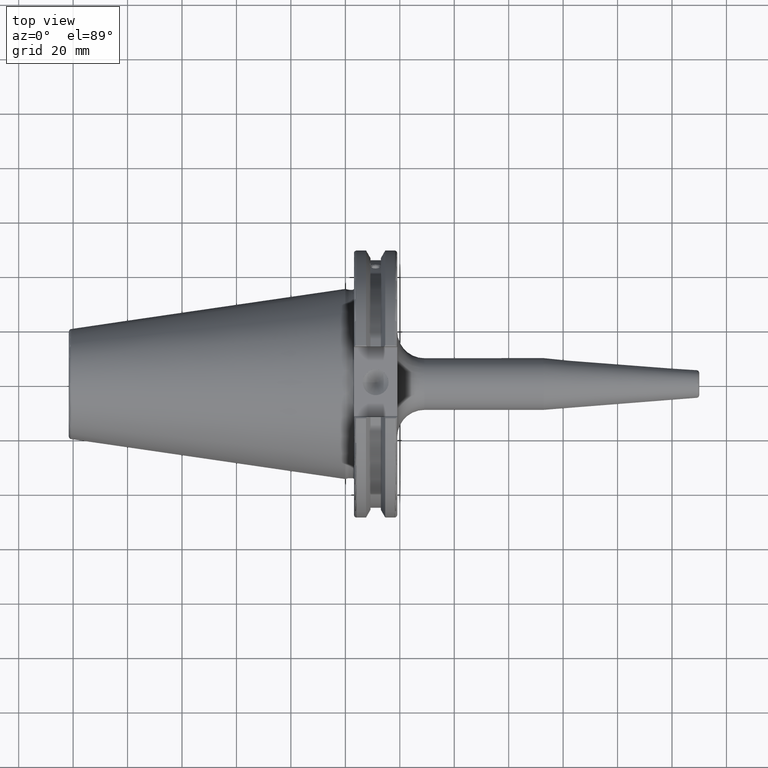
[diagram: clean part render]
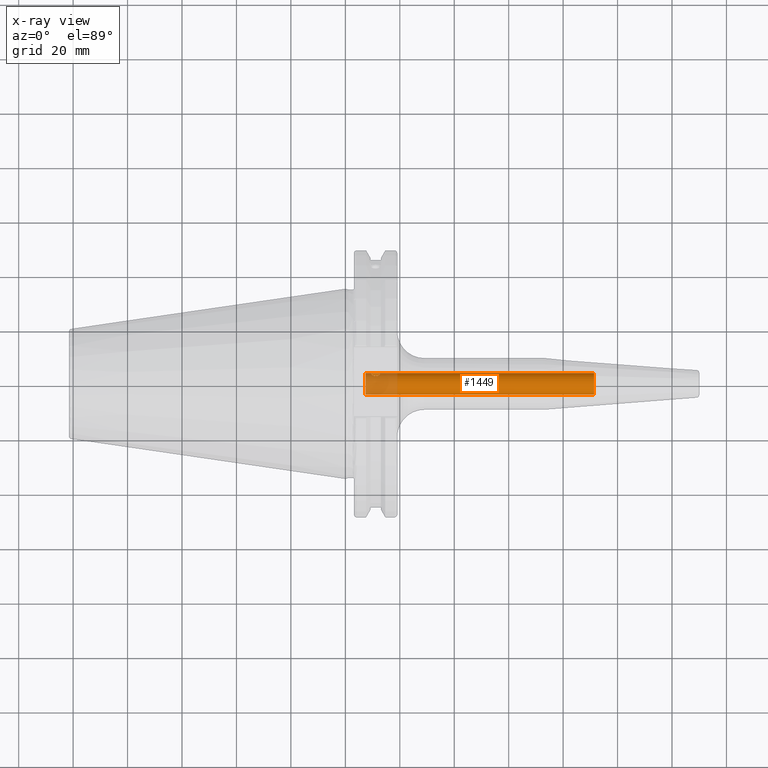
[diagram: x-ray — body ghosted, one internal face saturated and labeled with its STEP entity id]
A machine part, top view, then the same camera in x-ray: the body is ghosted and one INTERNAL B-rep face — a face not visible from any outside direction — is saturated and labeled: STEP entity #1449.
In plain terms, the highlighted cylindrical surface (bore or boss wall) has radius 4 mm, axis along (-1, 0, 0).
Its self-contained STEP definition (entity closure, byte-faithful):
#33=B_SPLINE_CURVE_WITH_KNOTS('',3,(#2195,#2196,#2197,#2198,#2199,#2200,
#2201,#2202,#2203,#2204,#2205,#2206,#2207,#2208,#2209,#2210,#2211,#2212,
#2213,#2214,#2215,#2216,#2217,#2218,#2219,#2220),.UNSPECIFIED.,.F.,.F.,
(4,2,2,2,2,2,2,2,2,2,2,2,4),(0.,0.0618742078368847,0.123748415673769,0.185556382934797,
0.247364350195824,0.309172317456851,0.370980284717878,0.432854492554763,
0.494728700391647,0.556602908228532,0.618477116065417,0.680285083326444,
0.742093050587471),.UNSPECIFIED.);
#34=B_SPLINE_CURVE_WITH_KNOTS('',3,(#2221,#2222,#2223,#2224,#2225,#2226,
#2227,#2228,#2229,#2230),.UNSPECIFIED.,.F.,.F.,(4,2,2,2,4),(0.742093050587471,
0.803901017848498,0.865708985109525,0.92758319294641,0.989457400783294),
 .UNSPECIFIED.);
#35=B_SPLINE_CURVE_WITH_KNOTS('',3,(#2233,#2234,#2235,#2236,#2237,#2238,
#2239,#2240,#2241,#2242,#2243,#2244,#2245,#2246,#2247,#2248,#2249,#2250,
#2251,#2252,#2253,#2254,#2255,#2256,#2257,#2258),.UNSPECIFIED.,.F.,.F.,
(4,2,2,2,2,2,2,2,2,2,2,2,4),(0.,0.0618742078368847,0.123748415673769,0.185556382934797,
0.247364350195824,0.309172317456851,0.370980284717879,0.432854492554763,
0.494728700391648,0.556602908228532,0.618477116065417,0.680285083326444,
0.742093050587471),.UNSPECIFIED.);
#36=B_SPLINE_CURVE_WITH_KNOTS('',3,(#2259,#2260,#2261,#2262,#2263,#2264,
#2265,#2266,#2267,#2268),.UNSPECIFIED.,.F.,.F.,(4,2,2,2,4),(0.742093050587471,
0.803901017848498,0.865708985109525,0.92758319294641,0.989457400783294),
 .UNSPECIFIED.);
#73=CYLINDRICAL_SURFACE('',#1574,4.);
#100=FACE_BOUND('',#451,.T.);
#101=FACE_BOUND('',#452,.T.);
#166=LINE('',#2192,#260);
#260=VECTOR('',#1779,4.);
#363=FACE_OUTER_BOUND('',#450,.T.);
#450=EDGE_LOOP('',(#1033,#1034,#1035,#1036));
#451=EDGE_LOOP('',(#1037,#1038));
#452=EDGE_LOOP('',(#1039,#1040));
#555=CIRCLE('',#1568,4.);
#557=CIRCLE('',#1572,4.);
#636=VERTEX_POINT('',#2178);
#638=VERTEX_POINT('',#2186);
#640=VERTEX_POINT('',#2193);
#641=VERTEX_POINT('',#2194);
#642=VERTEX_POINT('',#2231);
#643=VERTEX_POINT('',#2232);
#789=EDGE_CURVE('',#636,#636,#555,.T.);
#792=EDGE_CURVE('',#638,#638,#557,.T.);
#795=EDGE_CURVE('',#636,#638,#166,.T.);
#796=EDGE_CURVE('',#640,#641,#33,.T.);
#797=EDGE_CURVE('',#641,#640,#34,.T.);
#798=EDGE_CURVE('',#642,#643,#35,.T.);
#799=EDGE_CURVE('',#643,#642,#36,.T.);
#1033=ORIENTED_EDGE('',*,*,#789,.T.);
#1034=ORIENTED_EDGE('',*,*,#795,.T.);
#1035=ORIENTED_EDGE('',*,*,#792,.F.);
#1036=ORIENTED_EDGE('',*,*,#795,.F.);
#1037=ORIENTED_EDGE('',*,*,#796,.F.);
#1038=ORIENTED_EDGE('',*,*,#797,.F.);
#1039=ORIENTED_EDGE('',*,*,#798,.F.);
#1040=ORIENTED_EDGE('',*,*,#799,.F.);
#1449=ADVANCED_FACE('',(#363,#100,#101),#73,.F.);
#1568=AXIS2_PLACEMENT_3D('',#2180,#1763,#1764);
#1572=AXIS2_PLACEMENT_3D('',#2187,#1772,#1773);
#1574=AXIS2_PLACEMENT_3D('',#2191,#1777,#1778);
#1763=DIRECTION('center_axis',(-1.,0.,0.));
#1764=DIRECTION('ref_axis',(0.,0.,1.));
#1772=DIRECTION('center_axis',(-1.,0.,0.));
#1773=DIRECTION('ref_axis',(0.,0.,1.));
#1777=DIRECTION('center_axis',(-1.,0.,0.));
#1778=DIRECTION('ref_axis',(0.,0.,1.));
#1779=DIRECTION('',(1.,0.,0.));
#2178=CARTESIAN_POINT('',(7.45580917843603,-4.89858719658941E-16,-4.));
#2180=CARTESIAN_POINT('Origin',(7.45580917843603,0.,0.));
#2186=CARTESIAN_POINT('',(91.4,-4.89858719658942E-16,-4.00000000000001));
#2187=CARTESIAN_POINT('Origin',(91.4,0.,0.));
#2191=CARTESIAN_POINT('Origin',(-5.1,0.,0.));
#2192=CARTESIAN_POINT('',(-5.1,-4.89858719658941E-16,-4.));
#2193=CARTESIAN_POINT('',(11.1341,-3.99070482512933,0.272534399093866));
#2194=CARTESIAN_POINT('',(9.5131,-3.75877048314363,-1.36808057330268));
#2195=CARTESIAN_POINT('Ctrl Pts',(11.1341,-3.99070482512933,0.272534399093866));
#2196=CARTESIAN_POINT('Ctrl Pts',(11.3403473594563,-3.99070482512933,0.272534399093866));
#2197=CARTESIAN_POINT('Ctrl Pts',(11.5584520062584,-3.99457216119088,0.226743676053507));
#2198=CARTESIAN_POINT('Ctrl Pts',(11.9569734476557,-4.00071729112292,0.0477496275625743));
#2199=CARTESIAN_POINT('Ctrl Pts',(12.1376373648484,-4.00187016626142,-0.0849398902486523));
#2200=CARTESIAN_POINT('Ctrl Pts',(12.4228500681296,-3.98448362830594,-0.382128727215544));
#2201=CARTESIAN_POINT('Ctrl Pts',(12.5472588058457,-3.96471483330365,-0.567253235362105));
#2202=CARTESIAN_POINT('Ctrl Pts',(12.7134451981473,-3.88747363651699,-0.963477385751771));
#2203=CARTESIAN_POINT('Ctrl Pts',(12.7551,-3.82923571588125,-1.17447893749946));
#2204=CARTESIAN_POINT('Ctrl Pts',(12.7551,-3.68830525040602,-1.56168220910589));
#2205=CARTESIAN_POINT('Ctrl Pts',(12.7134451981473,-3.59728890279978,-1.76075338911026));
#2206=CARTESIAN_POINT('Ctrl Pts',(12.5472588058457,-3.40177111784901,-2.11392838199762));
#2207=CARTESIAN_POINT('Ctrl Pts',(12.4228500681296,-3.29791915332174,-2.26844911923433));
#2208=CARTESIAN_POINT('Ctrl Pts',(12.1376373648484,-3.12020871196815,-2.50728482752294));
#2209=CARTESIAN_POINT('Ctrl Pts',(11.9569734476557,-3.03403438039035,-2.60818984144782));
#2210=CARTESIAN_POINT('Ctrl Pts',(11.5584520062584,-2.91427178117607,-2.74135722426544));
#2211=CARTESIAN_POINT('Ctrl Pts',(11.3403473594563,-2.88187552046751,-2.77394907749405));
#2212=CARTESIAN_POINT('Ctrl Pts',(10.9278526405437,-2.88187552046751,-2.77394907749405));
#2213=CARTESIAN_POINT('Ctrl Pts',(10.7097479937416,-2.91427178117607,-2.74135722426544));
#2214=CARTESIAN_POINT('Ctrl Pts',(10.3112265523443,-3.03403438039035,-2.60818984144781));
#2215=CARTESIAN_POINT('Ctrl Pts',(10.1305626351516,-3.12020871196815,-2.50728482752294));
#2216=CARTESIAN_POINT('Ctrl Pts',(9.84534993187044,-3.29791915332174,-2.26844911923433));
#2217=CARTESIAN_POINT('Ctrl Pts',(9.72094119415433,-3.40177111784901,-2.11392838199762));
#2218=CARTESIAN_POINT('Ctrl Pts',(9.55475480185271,-3.59728890279979,-1.76075338911025));
#2219=CARTESIAN_POINT('Ctrl Pts',(9.5131,-3.68830525040602,-1.56168220910589));
#2220=CARTESIAN_POINT('Ctrl Pts',(9.5131,-3.75877048314363,-1.36808057330268));
#2221=CARTESIAN_POINT('Ctrl Pts',(9.5131,-3.75877048314363,-1.36808057330268));
#2222=CARTESIAN_POINT('Ctrl Pts',(9.5131,-3.82923571588125,-1.17447893749946));
#2223=CARTESIAN_POINT('Ctrl Pts',(9.55475480185271,-3.88747363651699,-0.963477385751773));
#2224=CARTESIAN_POINT('Ctrl Pts',(9.72094119415433,-3.96471483330365,-0.567253235362107));
#2225=CARTESIAN_POINT('Ctrl Pts',(9.84534993187044,-3.98448362830594,-0.382128727215546));
#2226=CARTESIAN_POINT('Ctrl Pts',(10.1305626351516,-4.00187016626142,-0.0849398902486549));
#2227=CARTESIAN_POINT('Ctrl Pts',(10.3112265523443,-4.00071729112292,0.0477496275625722));
#2228=CARTESIAN_POINT('Ctrl Pts',(10.7097479937416,-3.99457216119088,0.226743676053506));
#2229=CARTESIAN_POINT('Ctrl Pts',(10.9278526405437,-3.99070482512933,0.272534399093866));
#2230=CARTESIAN_POINT('Ctrl Pts',(11.1341,-3.99070482512933,0.272534399093866));
#2231=CARTESIAN_POINT('',(11.1341,3.99070482512933,-0.272534399093865));
#2232=CARTESIAN_POINT('',(9.5131,3.75877048314363,1.36808057330268));
#2233=CARTESIAN_POINT('Ctrl Pts',(11.1341,3.99070482512933,-0.272534399093865));
#2234=CARTESIAN_POINT('Ctrl Pts',(11.3403473594563,3.99070482512933,-0.272534399093866));
#2235=CARTESIAN_POINT('Ctrl Pts',(11.5584520062584,3.99457216119088,-0.226743676053507));
#2236=CARTESIAN_POINT('Ctrl Pts',(11.9569734476557,4.00071729112292,-0.047749627562574));
#2237=CARTESIAN_POINT('Ctrl Pts',(12.1376373648484,4.00187016626142,0.0849398902486522));
#2238=CARTESIAN_POINT('Ctrl Pts',(12.4228500681296,3.98448362830594,0.382128727215544));
#2239=CARTESIAN_POINT('Ctrl Pts',(12.5472588058457,3.96471483330365,0.567253235362105));
#2240=CARTESIAN_POINT('Ctrl Pts',(12.7134451981473,3.88747363651699,0.963477385751771));
#2241=CARTESIAN_POINT('Ctrl Pts',(12.7551,3.82923571588125,1.17447893749946));
#2242=CARTESIAN_POINT('Ctrl Pts',(12.7551,3.68830525040602,1.56168220910589));
#2243=CARTESIAN_POINT('Ctrl Pts',(12.7134451981473,3.59728890279978,1.76075338911026));
#2244=CARTESIAN_POINT('Ctrl Pts',(12.5472588058457,3.40177111784901,2.11392838199762));
#2245=CARTESIAN_POINT('Ctrl Pts',(12.4228500681296,3.29791915332174,2.26844911923433));
#2246=CARTESIAN_POINT('Ctrl Pts',(12.1376373648484,3.12020871196815,2.50728482752294));
#2247=CARTESIAN_POINT('Ctrl Pts',(11.9569734476557,3.03403438039035,2.60818984144782));
#2248=CARTESIAN_POINT('Ctrl Pts',(11.5584520062584,2.91427178117607,2.74135722426544));
#2249=CARTESIAN_POINT('Ctrl Pts',(11.3403473594563,2.88187552046751,2.77394907749405));
#2250=CARTESIAN_POINT('Ctrl Pts',(10.9278526405437,2.88187552046751,2.77394907749405));
#2251=CARTESIAN_POINT('Ctrl Pts',(10.7097479937416,2.91427178117607,2.74135722426544));
#2252=CARTESIAN_POINT('Ctrl Pts',(10.3112265523443,3.03403438039035,2.60818984144782));
#2253=CARTESIAN_POINT('Ctrl Pts',(10.1305626351516,3.12020871196815,2.50728482752294));
#2254=CARTESIAN_POINT('Ctrl Pts',(9.84534993187044,3.29791915332174,2.26844911923433));
#2255=CARTESIAN_POINT('Ctrl Pts',(9.72094119415433,3.40177111784901,2.11392838199762));
#2256=CARTESIAN_POINT('Ctrl Pts',(9.55475480185271,3.59728890279979,1.76075338911025));
#2257=CARTESIAN_POINT('Ctrl Pts',(9.5131,3.68830525040602,1.56168220910589));
#2258=CARTESIAN_POINT('Ctrl Pts',(9.5131,3.75877048314363,1.36808057330268));
#2259=CARTESIAN_POINT('Ctrl Pts',(9.5131,3.75877048314363,1.36808057330268));
#2260=CARTESIAN_POINT('Ctrl Pts',(9.5131,3.82923571588125,1.17447893749946));
#2261=CARTESIAN_POINT('Ctrl Pts',(9.55475480185271,3.88747363651699,0.963477385751774));
#2262=CARTESIAN_POINT('Ctrl Pts',(9.72094119415433,3.96471483330365,0.567253235362108));
#2263=CARTESIAN_POINT('Ctrl Pts',(9.84534993187044,3.98448362830594,0.382128727215546));
#2264=CARTESIAN_POINT('Ctrl Pts',(10.1305626351516,4.00187016626142,0.084939890248654));
#2265=CARTESIAN_POINT('Ctrl Pts',(10.3112265523443,4.00071729112292,-0.0477496275625707));
#2266=CARTESIAN_POINT('Ctrl Pts',(10.7097479937416,3.99457216119088,-0.226743676053505));
#2267=CARTESIAN_POINT('Ctrl Pts',(10.9278526405437,3.99070482512933,-0.272534399093865));
#2268=CARTESIAN_POINT('Ctrl Pts',(11.1341,3.99070482512933,-0.272534399093865));